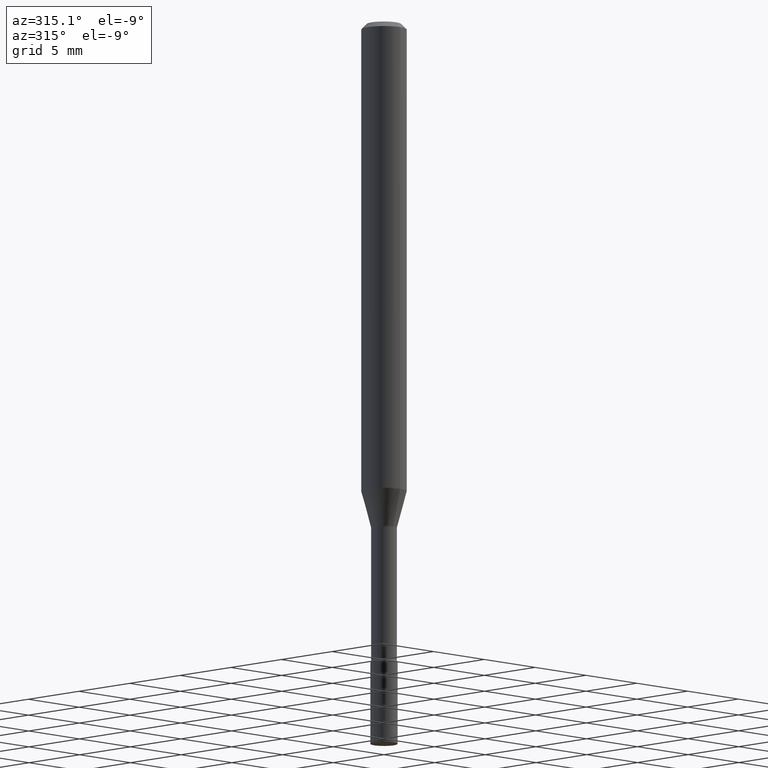
[diagram: clean part render]
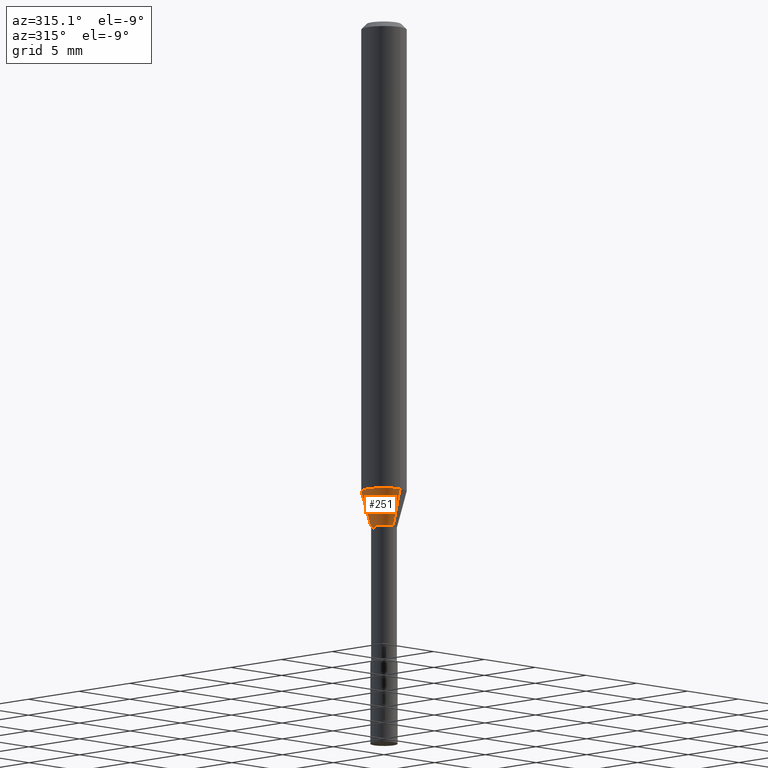
[diagram: same view with one face highlighted and labeled with its STEP entity id]
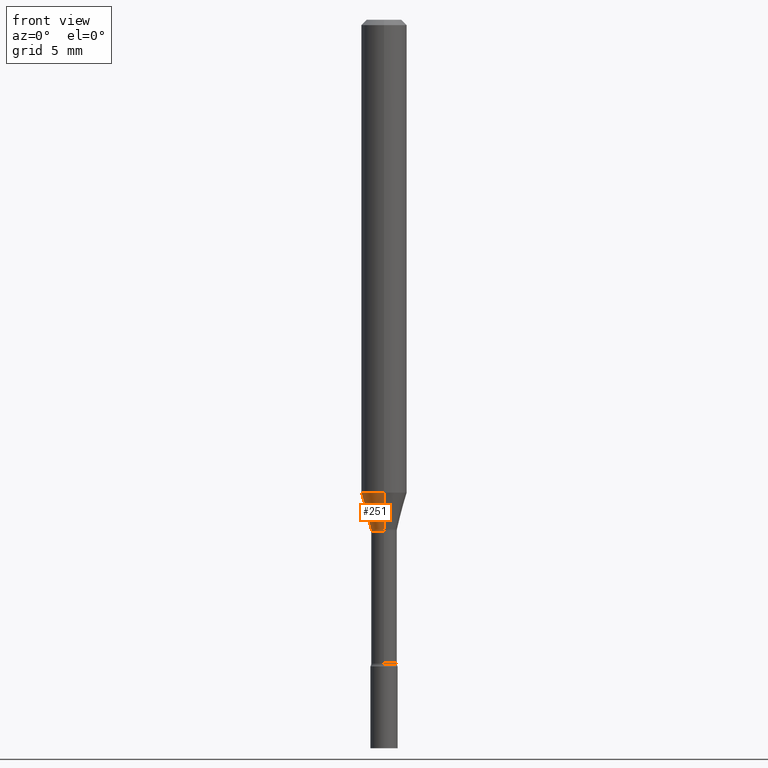
[diagram: same view with one face highlighted and labeled with its STEP entity id]
A machine part, auxiliary view. The second image highlights one B-rep face of the part: STEP entity #251.
A second angle (front view) of the same face is appended — the face is thin or edge-on in the first view.
In plain terms, the highlighted conical surface has half-angle 15 deg.
Its self-contained STEP definition (entity closure, byte-faithful):
#3 = CARTESIAN_POINT ( 'NONE',  ( 3.418998576260185238E-29, -4.881403891401201649E-15, -1.398092501787273179 ) ) ;
#5 = CONICAL_SURFACE ( 'NONE', #257, 0.03576111260566397498, 0.2617993877991499629 ) ;
#6 = CARTESIAN_POINT ( 'NONE',  ( 2.540979878465689744E-16, 0.03576111260565909000, -1.398092501787273179 ) ) ;
#16 = CARTESIAN_POINT ( 'NONE',  ( -2.497185146378532009E-16, -0.03576111260566885303, -1.398092501787273179 ) ) ;
#34 = VERTEX_POINT ( 'NONE', #287 ) ;
#51 = DIRECTION ( 'NONE',  ( -6.982962677686265922E-15, -1.000000000000000000, 4.370956789862821150E-15 ) ) ;
#54 = DIRECTION ( 'NONE',  ( 1.839019923739597949E-15, 0.2588190451025246253, 0.9659258262890670910 ) ) ;
#66 = EDGE_CURVE ( 'NONE', #324, #515, #518, .T. ) ;
#70 = DIRECTION ( 'NONE',  ( -2.445473795109733770E-29, 3.491474194419170341E-15, 1.000000000000000000 ) ) ;
#77 = EDGE_CURVE ( 'NONE', #34, #324, #252, .T. ) ;
#121 = CARTESIAN_POINT ( 'NONE',  ( -4.364351673553600657E-16, -0.06250000000000456579, -1.298301615493748118 ) ) ;
#152 = DIRECTION ( 'NONE',  ( -2.445473795109733770E-29, 3.491474194419170341E-15, 1.000000000000000000 ) ) ;
#213 = EDGE_CURVE ( 'NONE', #34, #432, #243, .T. ) ;
#216 = ORIENTED_EDGE ( 'NONE', *, *, #66, .F. ) ;
#224 = EDGE_LOOP ( 'NONE', ( #305, #456, #327, #216 ) ) ;
#243 = CIRCLE ( 'NONE', #405, 0.03576111260566397498 ) ;
#251 = ADVANCED_FACE ( 'NONE', ( #316 ), #5, .T. ) ;
#252 = LINE ( 'NONE', #6, #308 ) ;
#257 = AXIS2_PLACEMENT_3D ( 'NONE', #3, #152, #443 ) ;
#278 = CARTESIAN_POINT ( 'NONE',  ( 3.418998576260185238E-29, -4.881403891401201649E-15, -1.398092501787273179 ) ) ;
#286 = AXIS2_PLACEMENT_3D ( 'NONE', #447, #410, #51 ) ;
#287 = CARTESIAN_POINT ( 'NONE',  ( 3.490935988483317697E-16, 0.03576111260565909000, -1.398092501787273179 ) ) ;
#288 = DIRECTION ( 'NONE',  ( -1.807323732225328167E-15, -0.2588190451025179084, 0.9659258262890690894 ) ) ;
#297 = CARTESIAN_POINT ( 'NONE',  ( -2.497185146378532009E-16, -0.03576111260566885303, -1.398092501787273179 ) ) ;
#305 = ORIENTED_EDGE ( 'NONE', *, *, #77, .F. ) ;
#308 = VECTOR ( 'NONE', #54, 39.37007874015748854 ) ;
#316 = FACE_OUTER_BOUND ( 'NONE', #224, .T. ) ;
#324 = VERTEX_POINT ( 'NONE', #467 ) ;
#327 = ORIENTED_EDGE ( 'NONE', *, *, #357, .T. ) ;
#357 = EDGE_CURVE ( 'NONE', #432, #515, #503, .T. ) ;
#405 = AXIS2_PLACEMENT_3D ( 'NONE', #278, #70, #476 ) ;
#410 = DIRECTION ( 'NONE',  ( -2.445473795109733770E-29, 3.491474194419170341E-15, 1.000000000000000000 ) ) ;
#432 = VERTEX_POINT ( 'NONE', #297 ) ;
#443 = DIRECTION ( 'NONE',  ( -6.982962677686265133E-15, -1.000000000000000000, 0.000000000000000000 ) ) ;
#447 = CARTESIAN_POINT ( 'NONE',  ( 3.174962578838594889E-29, -4.532986587069142857E-15, -1.298301615493748340 ) ) ;
#456 = ORIENTED_EDGE ( 'NONE', *, *, #213, .T. ) ;
#467 = CARTESIAN_POINT ( 'NONE',  ( 4.440892098500939734E-16, 0.06249999999999543421, -1.298301615493748562 ) ) ;
#476 = DIRECTION ( 'NONE',  ( -6.982962677686265133E-15, -1.000000000000000000, 0.000000000000000000 ) ) ;
#479 = VECTOR ( 'NONE', #288, 39.37007874015748143 ) ;
#503 = LINE ( 'NONE', #16, #479 ) ;
#515 = VERTEX_POINT ( 'NONE', #121 ) ;
#518 = CIRCLE ( 'NONE', #286, 0.06250000000000000000 ) ;